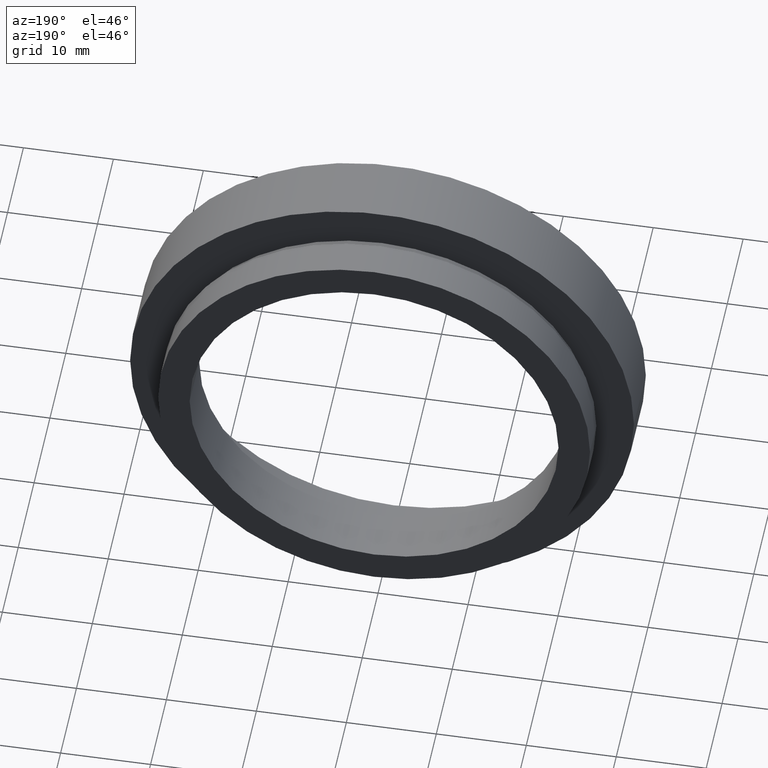
[diagram: clean part render]
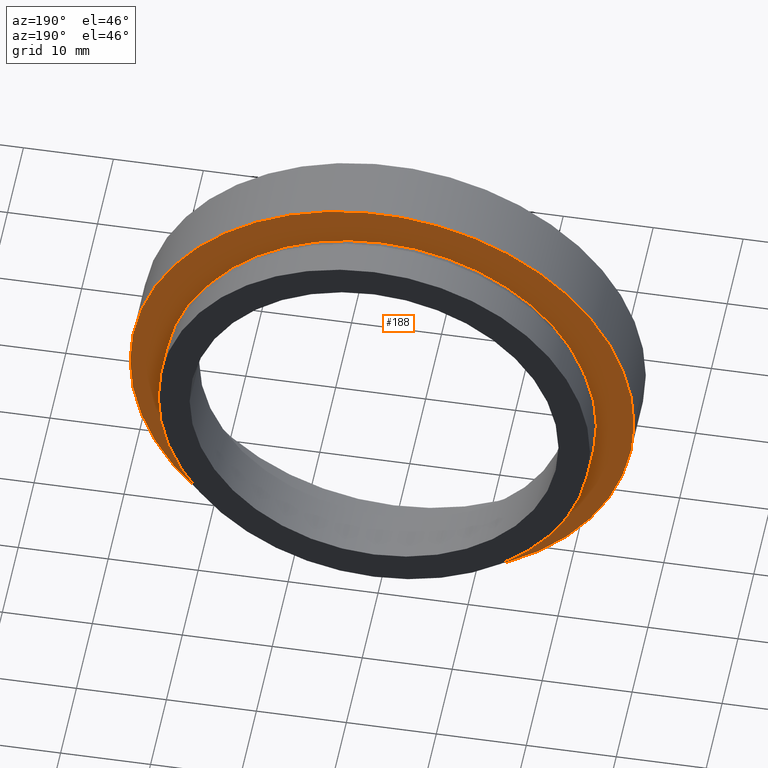
[diagram: same view with one face highlighted and labeled with its STEP entity id]
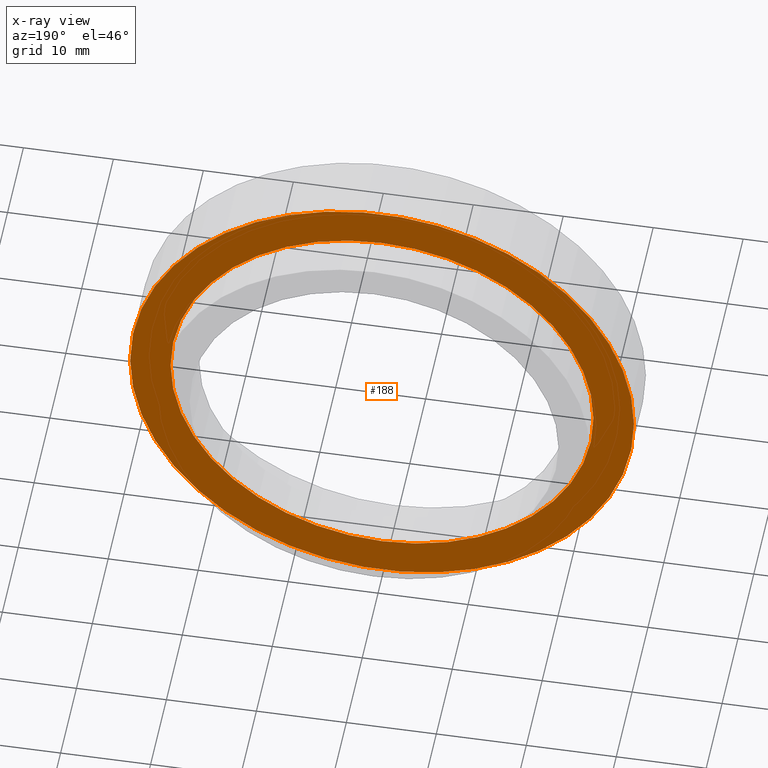
[diagram: x-ray of the same camera — body ghosted, the highlighted face saturated]
A machine part, auxiliary view. The second image highlights one B-rep face of the part: STEP entity #188.
The next image is the same camera in x-ray: the body ghosted, the highlighted face saturated — about 0% of this face is hidden behind the body in this view.
In plain terms, the highlighted planar face has unit normal (0, -1, 0).
Its self-contained STEP definition (entity closure, byte-faithful):
#3 = EDGE_CURVE ( 'NONE', #508, #568, #146, .T. ) ;
#12 = AXIS2_PLACEMENT_3D ( 'NONE', #605, #163, #102 ) ;
#29 = EDGE_CURVE ( 'NONE', #568, #508, #371, .T. ) ;
#53 = CARTESIAN_POINT ( 'NONE',  ( 28.00000000000000400, 7.500000000000000000, 3.429011037612589700E-015 ) ) ;
#66 = AXIS2_PLACEMENT_3D ( 'NONE', #170, #271, #241 ) ;
#72 = CARTESIAN_POINT ( 'NONE',  ( 23.50000000000000400, 7.499999999999999100, 2.877919977996280700E-015 ) ) ;
#97 = EDGE_CURVE ( 'NONE', #596, #442, #280, .T. ) ;
#98 = ORIENTED_EDGE ( 'NONE', *, *, #97, .T. ) ;
#102 = DIRECTION ( 'NONE',  ( -1.000000000000000000, -1.239088197126290600E-016, 0.0000000000000000000 ) ) ;
#146 = CIRCLE ( 'NONE', #464, 23.50000000000000400 ) ;
#163 = DIRECTION ( 'NONE',  ( -1.224646799147351000E-016, 1.000000000000000000, -0.0000000000000000000 ) ) ;
#166 = ORIENTED_EDGE ( 'NONE', *, *, #3, .F. ) ;
#170 = CARTESIAN_POINT ( 'NONE',  ( 1.149455719078123100E-015, 7.499999999999996400, 0.0000000000000000000 ) ) ;
#184 = ORIENTED_EDGE ( 'NONE', *, *, #455, .T. ) ;
#188 = ADVANCED_FACE ( 'NONE', ( #378, #401 ), #597, .F. ) ;
#230 = DIRECTION ( 'NONE',  ( -1.224646799147351000E-016, 1.000000000000000000, -0.0000000000000000000 ) ) ;
#241 = DIRECTION ( 'NONE',  ( -1.000000000000000000, -1.239088197126290600E-016, 0.0000000000000000000 ) ) ;
#271 = DIRECTION ( 'NONE',  ( -1.224646799147351000E-016, 1.000000000000000000, -0.0000000000000000000 ) ) ;
#280 = CIRCLE ( 'NONE', #66, 28.00000000000000400 ) ;
#297 = CARTESIAN_POINT ( 'NONE',  ( -23.50000000000000400, 7.499999999999993800, 0.0000000000000000000 ) ) ;
#359 = DIRECTION ( 'NONE',  ( 1.000000000000000000, 1.224646799147351000E-016, 0.0000000000000000000 ) ) ;
#366 = DIRECTION ( 'NONE',  ( 1.224646799147351000E-016, -1.000000000000000000, 0.0000000000000000000 ) ) ;
#371 = CIRCLE ( 'NONE', #437, 23.50000000000000400 ) ;
#378 = FACE_BOUND ( 'NONE', #404, .T. ) ;
#401 = FACE_OUTER_BOUND ( 'NONE', #552, .T. ) ;
#404 = EDGE_LOOP ( 'NONE', ( #501, #166 ) ) ;
#437 = AXIS2_PLACEMENT_3D ( 'NONE', #550, #548, #543 ) ;
#442 = VERTEX_POINT ( 'NONE', #479 ) ;
#455 = EDGE_CURVE ( 'NONE', #442, #596, #474, .T. ) ;
#456 = AXIS2_PLACEMENT_3D ( 'NONE', #567, #366, #359 ) ;
#464 = AXIS2_PLACEMENT_3D ( 'NONE', #601, #230, #564 ) ;
#474 = CIRCLE ( 'NONE', #12, 28.00000000000000400 ) ;
#479 = CARTESIAN_POINT ( 'NONE',  ( -28.00000000000000400, 7.499999999999992900, 0.0000000000000000000 ) ) ;
#501 = ORIENTED_EDGE ( 'NONE', *, *, #29, .F. ) ;
#508 = VERTEX_POINT ( 'NONE', #72 ) ;
#543 = DIRECTION ( 'NONE',  ( -1.000000000000000000, -1.107270303814983000E-016, 0.0000000000000000000 ) ) ;
#548 = DIRECTION ( 'NONE',  ( -1.224646799147351000E-016, 1.000000000000000000, -0.0000000000000000000 ) ) ;
#550 = CARTESIAN_POINT ( 'NONE',  ( 1.149455719078123100E-015, 7.499999999999996400, 0.0000000000000000000 ) ) ;
#552 = EDGE_LOOP ( 'NONE', ( #184, #98 ) ) ;
#564 = DIRECTION ( 'NONE',  ( -1.000000000000000000, -1.107270303814983000E-016, 0.0000000000000000000 ) ) ;
#567 = CARTESIAN_POINT ( 'NONE',  ( 23.50000000000000400, 7.500000000000000000, 0.0000000000000000000 ) ) ;
#568 = VERTEX_POINT ( 'NONE', #297 ) ;
#596 = VERTEX_POINT ( 'NONE', #53 ) ;
#597 = PLANE ( 'NONE',  #456 ) ;
#601 = CARTESIAN_POINT ( 'NONE',  ( 1.149455719078123100E-015, 7.499999999999996400, 0.0000000000000000000 ) ) ;
#605 = CARTESIAN_POINT ( 'NONE',  ( 1.149455719078123100E-015, 7.499999999999996400, 0.0000000000000000000 ) ) ;